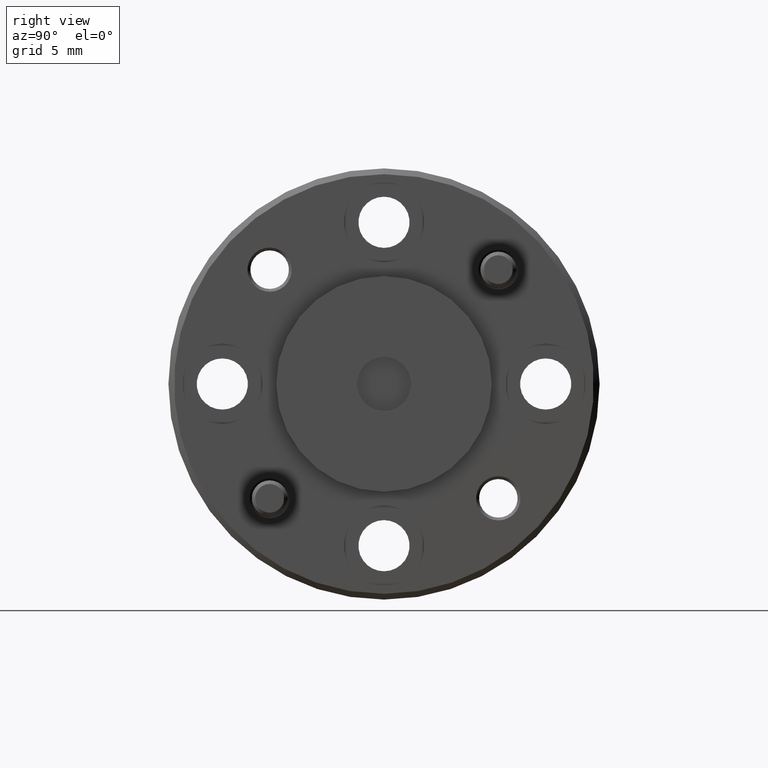
[diagram: clean part render]
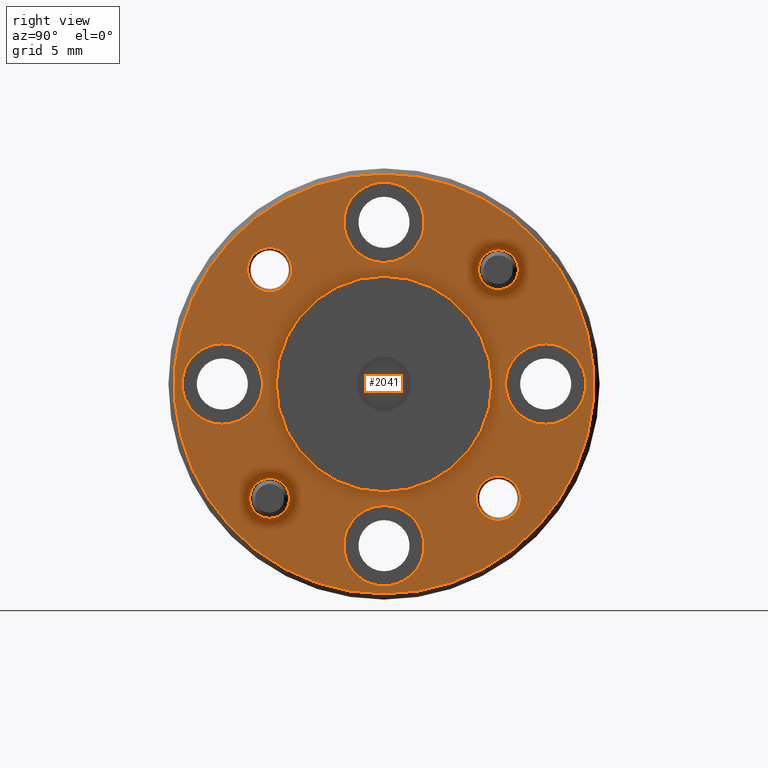
[diagram: same view with one face highlighted and labeled with its STEP entity id]
A machine part, right view. The second image highlights one B-rep face of the part: STEP entity #2041.
In plain terms, the highlighted planar face has unit normal (1, 0, -0).
Its self-contained STEP definition (entity closure, byte-faithful):
#2 = VERTEX_POINT ( 'NONE', #1947 ) ;
#29 = DIRECTION ( 'NONE',  ( 0.0000000000000000000, 0.0000000000000000000, -1.000000000000000000 ) ) ;
#30 = CARTESIAN_POINT ( 'NONE',  ( 0.3505151396269433600, 0.4701054730334653400, 0.1041474666369298500 ) ) ;
#40 = DIRECTION ( 'NONE',  ( 1.000000000000000000, 0.0000000000000000000, 0.0000000000000000000 ) ) ;
#57 = AXIS2_PLACEMENT_3D ( 'NONE', #1009, #40, #695 ) ;
#65 = FACE_BOUND ( 'NONE', #791, .T. ) ;
#67 = AXIS2_PLACEMENT_3D ( 'NONE', #783, #1243, #921 ) ;
#97 = ORIENTED_EDGE ( 'NONE', *, *, #891, .F. ) ;
#113 = EDGE_LOOP ( 'NONE', ( #856, #471 ) ) ;
#129 = CARTESIAN_POINT ( 'NONE',  ( 0.3505151396269433600, 0.1888554730334652300, 0.4691474666369300800 ) ) ;
#131 = EDGE_CURVE ( 'NONE', #2015, #784, #1611, .T. ) ;
#162 = EDGE_CURVE ( 'NONE', #1688, #345, #546, .T. ) ;
#191 = EDGE_LOOP ( 'NONE', ( #1325, #1597 ) ) ;
#193 = VERTEX_POINT ( 'NONE', #527 ) ;
#214 = DIRECTION ( 'NONE',  ( 0.0000000000000000000, 0.0000000000000000000, -1.000000000000000000 ) ) ;
#216 = VERTEX_POINT ( 'NONE', #860 ) ;
#218 = DIRECTION ( 'NONE',  ( 1.000000000000000000, -0.0000000000000000000, -0.0000000000000000000 ) ) ;
#223 = CARTESIAN_POINT ( 'NONE',  ( 0.3505151396269433600, 0.2712316908247487900, 0.2702736844282135300 ) ) ;
#224 = CIRCLE ( 'NONE', #1627, 0.1874999999999999700 ) ;
#226 = AXIS2_PLACEMENT_3D ( 'NONE', #1375, #1214, #1509 ) ;
#236 = VERTEX_POINT ( 'NONE', #1835 ) ;
#243 = CARTESIAN_POINT ( 'NONE',  ( 0.3505151396269433600, 0.7513554730334652800, 0.4691474666369300800 ) ) ;
#244 = DIRECTION ( 'NONE',  ( 0.0000000000000000000, 0.0000000000000000000, -1.000000000000000000 ) ) ;
#258 = DIRECTION ( 'NONE',  ( 1.000000000000000000, 0.0000000000000000000, 0.0000000000000000000 ) ) ;
#268 = ORIENTED_EDGE ( 'NONE', *, *, #131, .F. ) ;
#277 = CARTESIAN_POINT ( 'NONE',  ( 0.3505151396269433600, 0.4701054730334652800, 0.8341474666369302900 ) ) ;
#294 = CARTESIAN_POINT ( 'NONE',  ( 0.3505151396269433600, 0.4701054730334652800, 0.4691474666369300800 ) ) ;
#299 = DIRECTION ( 'NONE',  ( 1.000000000000000000, 0.0000000000000000000, 0.0000000000000000000 ) ) ;
#345 = VERTEX_POINT ( 'NONE', #2000 ) ;
#349 = AXIS2_PLACEMENT_3D ( 'NONE', #129, #1103, #1910 ) ;
#358 = EDGE_CURVE ( 'NONE', #414, #1220, #476, .T. ) ;
#367 = DIRECTION ( 'NONE',  ( 0.0000000000000000000, 0.0000000000000000000, -1.000000000000000000 ) ) ;
#374 = DIRECTION ( 'NONE',  ( 0.0000000000000000000, 0.0000000000000000000, -1.000000000000000000 ) ) ;
#378 = CIRCLE ( 'NONE', #1636, 0.03850000000000001300 ) ;
#388 = ORIENTED_EDGE ( 'NONE', *, *, #998, .F. ) ;
#402 = AXIS2_PLACEMENT_3D ( 'NONE', #1971, #218, #1350 ) ;
#414 = VERTEX_POINT ( 'NONE', #2043 ) ;
#418 = AXIS2_PLACEMENT_3D ( 'NONE', #223, #718, #857 ) ;
#457 = ORIENTED_EDGE ( 'NONE', *, *, #1838, .T. ) ;
#471 = ORIENTED_EDGE ( 'NONE', *, *, #698, .F. ) ;
#474 = FACE_BOUND ( 'NONE', #1330, .T. ) ;
#475 = CARTESIAN_POINT ( 'NONE',  ( 0.3505151396269433600, 0.2712316908247487900, 0.6680212488456465100 ) ) ;
#476 = CIRCLE ( 'NONE', #349, 0.07000000000000000700 ) ;
#484 = VERTEX_POINT ( 'NONE', #30 ) ;
#488 = DIRECTION ( 'NONE',  ( 1.000000000000000000, -0.0000000000000000000, -0.0000000000000000000 ) ) ;
#490 = AXIS2_PLACEMENT_3D ( 'NONE', #871, #520, #214 ) ;
#494 = DIRECTION ( 'NONE',  ( 0.0000000000000000000, 0.0000000000000000000, -1.000000000000000000 ) ) ;
#496 = FACE_BOUND ( 'NONE', #191, .T. ) ;
#508 = ORIENTED_EDGE ( 'NONE', *, *, #1152, .F. ) ;
#518 = CIRCLE ( 'NONE', #913, 0.06999999999999999300 ) ;
#520 = DIRECTION ( 'NONE',  ( 1.000000000000000000, -0.0000000000000000000, -0.0000000000000000000 ) ) ;
#527 = CARTESIAN_POINT ( 'NONE',  ( 0.3505151396269433600, 0.2712316908247487900, 0.3050236844282135400 ) ) ;
#532 = ORIENTED_EDGE ( 'NONE', *, *, #1404, .T. ) ;
#546 = CIRCLE ( 'NONE', #490, 0.03850000000000001300 ) ;
#562 = EDGE_CURVE ( 'NONE', #1523, #1619, #1787, .T. ) ;
#566 = CARTESIAN_POINT ( 'NONE',  ( 0.3505151396269433600, 0.4701054730334652800, 0.4691474666369300800 ) ) ;
#586 = AXIS2_PLACEMENT_3D ( 'NONE', #1802, #1507, #367 ) ;
#591 = DIRECTION ( 'NONE',  ( 0.0000000000000000000, 0.0000000000000000000, -1.000000000000000000 ) ) ;
#599 = EDGE_CURVE ( 'NONE', #1276, #216, #378, .T. ) ;
#605 = ORIENTED_EDGE ( 'NONE', *, *, #562, .F. ) ;
#610 = CARTESIAN_POINT ( 'NONE',  ( 0.3505151396269433600, 0.7513554730334652800, 0.3991474666369300700 ) ) ;
#627 = DIRECTION ( 'NONE',  ( -0.0000000000000000000, 0.0000000000000000000, -1.000000000000000000 ) ) ;
#646 = CIRCLE ( 'NONE', #1729, 0.06999999999999993700 ) ;
#659 = ORIENTED_EDGE ( 'NONE', *, *, #1047, .F. ) ;
#667 = CARTESIAN_POINT ( 'NONE',  ( 0.3505151396269433600, 0.6689792552421817100, 0.2317736844282135300 ) ) ;
#678 = CIRCLE ( 'NONE', #402, 0.3650000000000002100 ) ;
#693 = CARTESIAN_POINT ( 'NONE',  ( 0.3505151396269433600, 0.7513554730334652800, 0.4691474666369300800 ) ) ;
#695 = DIRECTION ( 'NONE',  ( 0.0000000000000000000, 0.0000000000000000000, -1.000000000000000000 ) ) ;
#696 = DIRECTION ( 'NONE',  ( 1.000000000000000000, -0.0000000000000000000, -0.0000000000000000000 ) ) ;
#698 = EDGE_CURVE ( 'NONE', #193, #1504, #1730, .T. ) ;
#717 = ORIENTED_EDGE ( 'NONE', *, *, #720, .F. ) ;
#718 = DIRECTION ( 'NONE',  ( 1.000000000000000000, -0.0000000000000000000, -0.0000000000000000000 ) ) ;
#720 = EDGE_CURVE ( 'NONE', #887, #1746, #1702, .T. ) ;
#749 = CIRCLE ( 'NONE', #868, 0.06999999999999999300 ) ;
#770 = CARTESIAN_POINT ( 'NONE',  ( 0.3505151396269433600, 0.2712316908247487900, 0.2702736844282135300 ) ) ;
#783 = CARTESIAN_POINT ( 'NONE',  ( 0.3505151396269433600, 0.1888554730334652300, 0.4691474666369300800 ) ) ;
#784 = VERTEX_POINT ( 'NONE', #1055 ) ;
#789 = CARTESIAN_POINT ( 'NONE',  ( 0.3505151396269433600, 0.6576054730334651700, 0.4691474666369300800 ) ) ;
#791 = EDGE_LOOP ( 'NONE', ( #268, #1351 ) ) ;
#800 = CARTESIAN_POINT ( 'NONE',  ( 0.3505151396269433600, 0.4701054730334652800, 0.1878974666369300200 ) ) ;
#808 = CARTESIAN_POINT ( 'NONE',  ( 0.3505151396269433600, 0.6689792552421817100, 0.6680212488456465100 ) ) ;
#812 = CARTESIAN_POINT ( 'NONE',  ( 0.3505151396269433600, 0.6689792552421817100, 0.6680212488456465100 ) ) ;
#821 = AXIS2_PLACEMENT_3D ( 'NONE', #693, #1336, #1363 ) ;
#830 = CIRCLE ( 'NONE', #821, 0.07000000000000000700 ) ;
#856 = ORIENTED_EDGE ( 'NONE', *, *, #1111, .F. ) ;
#857 = DIRECTION ( 'NONE',  ( 0.0000000000000000000, 0.0000000000000000000, -1.000000000000000000 ) ) ;
#860 = CARTESIAN_POINT ( 'NONE',  ( 0.3505151396269433600, 0.6689792552421817100, 0.3087736844282135700 ) ) ;
#861 = CARTESIAN_POINT ( 'NONE',  ( 0.3505151396269433600, 0.4701054730334652800, 0.2578974666369300300 ) ) ;
#868 = AXIS2_PLACEMENT_3D ( 'NONE', #1900, #299, #2049 ) ;
#871 = CARTESIAN_POINT ( 'NONE',  ( 0.3505151396269433600, 0.2712316908247487900, 0.6680212488456465100 ) ) ;
#878 = CARTESIAN_POINT ( 'NONE',  ( 0.3505151396269433600, 0.6689792552421817100, 0.2702736844282135300 ) ) ;
#887 = VERTEX_POINT ( 'NONE', #1771 ) ;
#891 = EDGE_CURVE ( 'NONE', #1619, #1523, #1003, .T. ) ;
#896 = EDGE_CURVE ( 'NONE', #2, #1483, #518, .T. ) ;
#913 = AXIS2_PLACEMENT_3D ( 'NONE', #800, #964, #494 ) ;
#921 = DIRECTION ( 'NONE',  ( 0.0000000000000000000, 0.0000000000000000000, -1.000000000000000000 ) ) ;
#953 = CIRCLE ( 'NONE', #1843, 0.03475000000000001700 ) ;
#954 = AXIS2_PLACEMENT_3D ( 'NONE', #808, #488, #1613 ) ;
#958 = CIRCLE ( 'NONE', #586, 0.03850000000000001300 ) ;
#961 = EDGE_CURVE ( 'NONE', #1746, #887, #224, .T. ) ;
#964 = DIRECTION ( 'NONE',  ( 1.000000000000000000, 0.0000000000000000000, 0.0000000000000000000 ) ) ;
#965 = DIRECTION ( 'NONE',  ( 1.000000000000000000, -0.0000000000000000000, -0.0000000000000000000 ) ) ;
#971 = CARTESIAN_POINT ( 'NONE',  ( 0.3505151396269433600, 0.4701054730334652800, 0.6803974666369302400 ) ) ;
#998 = EDGE_CURVE ( 'NONE', #1182, #236, #646, .T. ) ;
#1003 = CIRCLE ( 'NONE', #1312, 0.03474999999999994800 ) ;
#1009 = CARTESIAN_POINT ( 'NONE',  ( 0.3505151396269433600, 0.4701054730334652800, 0.7503974666369301900 ) ) ;
#1016 = EDGE_LOOP ( 'NONE', ( #1199, #1717 ) ) ;
#1029 = FACE_BOUND ( 'NONE', #1989, .T. ) ;
#1037 = CARTESIAN_POINT ( 'NONE',  ( 0.3505151396269433600, 0.2712316908247487900, 0.7065212488456466000 ) ) ;
#1041 = DIRECTION ( 'NONE',  ( 0.0000000000000000000, 0.0000000000000000000, -1.000000000000000000 ) ) ;
#1047 = EDGE_CURVE ( 'NONE', #1220, #414, #1881, .T. ) ;
#1055 = CARTESIAN_POINT ( 'NONE',  ( 0.3505151396269433600, 0.7513554730334652800, 0.5391474666369300300 ) ) ;
#1062 = CARTESIAN_POINT ( 'NONE',  ( 0.3505151396269433600, 0.4701054730334652800, 0.2816474666369300800 ) ) ;
#1077 = DIRECTION ( 'NONE',  ( 1.000000000000000000, -0.0000000000000000000, -0.0000000000000000000 ) ) ;
#1101 = AXIS2_PLACEMENT_3D ( 'NONE', #243, #1345, #374 ) ;
#1102 = DIRECTION ( 'NONE',  ( 1.000000000000000000, 0.0000000000000000000, -0.0000000000000000000 ) ) ;
#1103 = DIRECTION ( 'NONE',  ( 1.000000000000000000, 0.0000000000000000000, 0.0000000000000000000 ) ) ;
#1111 = EDGE_CURVE ( 'NONE', #1504, #193, #953, .T. ) ;
#1124 = EDGE_CURVE ( 'NONE', #1483, #2, #749, .T. ) ;
#1133 = FACE_BOUND ( 'NONE', #1302, .T. ) ;
#1142 = CARTESIAN_POINT ( 'NONE',  ( 0.3505151396269433600, 0.1888554730334652300, 0.3991474666369300700 ) ) ;
#1143 = EDGE_LOOP ( 'NONE', ( #388, #1898 ) ) ;
#1152 = EDGE_CURVE ( 'NONE', #345, #1688, #1674, .T. ) ;
#1182 = VERTEX_POINT ( 'NONE', #971 ) ;
#1199 = ORIENTED_EDGE ( 'NONE', *, *, #599, .F. ) ;
#1204 = AXIS2_PLACEMENT_3D ( 'NONE', #475, #1765, #1608 ) ;
#1214 = DIRECTION ( 'NONE',  ( 1.000000000000000000, -0.0000000000000000000, -0.0000000000000000000 ) ) ;
#1220 = VERTEX_POINT ( 'NONE', #1142 ) ;
#1221 = EDGE_LOOP ( 'NONE', ( #97, #605 ) ) ;
#1237 = FACE_OUTER_BOUND ( 'NONE', #1574, .T. ) ;
#1243 = DIRECTION ( 'NONE',  ( 1.000000000000000000, 0.0000000000000000000, 0.0000000000000000000 ) ) ;
#1276 = VERTEX_POINT ( 'NONE', #667 ) ;
#1293 = EDGE_CURVE ( 'NONE', #216, #1276, #958, .T. ) ;
#1302 = EDGE_LOOP ( 'NONE', ( #1824, #717 ) ) ;
#1312 = AXIS2_PLACEMENT_3D ( 'NONE', #812, #965, #29 ) ;
#1325 = ORIENTED_EDGE ( 'NONE', *, *, #896, .F. ) ;
#1330 = EDGE_LOOP ( 'NONE', ( #659, #1874 ) ) ;
#1336 = DIRECTION ( 'NONE',  ( 1.000000000000000000, 0.0000000000000000000, 0.0000000000000000000 ) ) ;
#1345 = DIRECTION ( 'NONE',  ( 1.000000000000000000, 0.0000000000000000000, 0.0000000000000000000 ) ) ;
#1350 = DIRECTION ( 'NONE',  ( 0.0000000000000000000, 0.0000000000000000000, -1.000000000000000000 ) ) ;
#1351 = ORIENTED_EDGE ( 'NONE', *, *, #1417, .F. ) ;
#1353 = ORIENTED_EDGE ( 'NONE', *, *, #162, .F. ) ;
#1363 = DIRECTION ( 'NONE',  ( 0.0000000000000000000, 0.0000000000000000000, -1.000000000000000000 ) ) ;
#1370 = CIRCLE ( 'NONE', #1484, 0.3650000000000002100 ) ;
#1375 = CARTESIAN_POINT ( 'NONE',  ( 0.3505151396269433600, 0.4701054730334652800, 0.4691474666369300800 ) ) ;
#1378 = EDGE_CURVE ( 'NONE', #236, #1182, #1680, .T. ) ;
#1392 = DIRECTION ( 'NONE',  ( 0.0000000000000000000, 0.0000000000000000000, -1.000000000000000000 ) ) ;
#1404 = EDGE_CURVE ( 'NONE', #1925, #484, #678, .T. ) ;
#1417 = EDGE_CURVE ( 'NONE', #784, #2015, #830, .T. ) ;
#1419 = DIRECTION ( 'NONE',  ( 0.0000000000000000000, 0.0000000000000000000, -1.000000000000000000 ) ) ;
#1452 = FACE_BOUND ( 'NONE', #1143, .T. ) ;
#1483 = VERTEX_POINT ( 'NONE', #861 ) ;
#1484 = AXIS2_PLACEMENT_3D ( 'NONE', #294, #1718, #591 ) ;
#1501 = CARTESIAN_POINT ( 'NONE',  ( 0.3505151396269433600, 0.2712316908247487900, 0.2355236844282135000 ) ) ;
#1504 = VERTEX_POINT ( 'NONE', #1501 ) ;
#1507 = DIRECTION ( 'NONE',  ( 1.000000000000000000, -0.0000000000000000000, -0.0000000000000000000 ) ) ;
#1509 = DIRECTION ( 'NONE',  ( 0.0000000000000000000, 0.0000000000000000000, -1.000000000000000000 ) ) ;
#1516 = FACE_BOUND ( 'NONE', #113, .T. ) ;
#1523 = VERTEX_POINT ( 'NONE', #1996 ) ;
#1533 = CARTESIAN_POINT ( 'NONE',  ( 0.3505151396269433600, 0.4701054730334652800, 0.7503974666369301900 ) ) ;
#1558 = FACE_BOUND ( 'NONE', #1221, .T. ) ;
#1574 = EDGE_LOOP ( 'NONE', ( #532, #457 ) ) ;
#1597 = ORIENTED_EDGE ( 'NONE', *, *, #1124, .F. ) ;
#1608 = DIRECTION ( 'NONE',  ( 0.0000000000000000000, 0.0000000000000000000, -1.000000000000000000 ) ) ;
#1611 = CIRCLE ( 'NONE', #1101, 0.07000000000000000700 ) ;
#1613 = DIRECTION ( 'NONE',  ( 0.0000000000000000000, 0.0000000000000000000, -1.000000000000000000 ) ) ;
#1619 = VERTEX_POINT ( 'NONE', #1966 ) ;
#1627 = AXIS2_PLACEMENT_3D ( 'NONE', #566, #2037, #244 ) ;
#1636 = AXIS2_PLACEMENT_3D ( 'NONE', #878, #696, #1041 ) ;
#1674 = CIRCLE ( 'NONE', #1204, 0.03850000000000001300 ) ;
#1680 = CIRCLE ( 'NONE', #57, 0.06999999999999993700 ) ;
#1688 = VERTEX_POINT ( 'NONE', #1037 ) ;
#1699 = AXIS2_PLACEMENT_3D ( 'NONE', #789, #1102, #627 ) ;
#1702 = CIRCLE ( 'NONE', #226, 0.1874999999999999700 ) ;
#1717 = ORIENTED_EDGE ( 'NONE', *, *, #1293, .F. ) ;
#1718 = DIRECTION ( 'NONE',  ( 1.000000000000000000, -0.0000000000000000000, -0.0000000000000000000 ) ) ;
#1729 = AXIS2_PLACEMENT_3D ( 'NONE', #1533, #258, #1392 ) ;
#1730 = CIRCLE ( 'NONE', #418, 0.03475000000000001700 ) ;
#1746 = VERTEX_POINT ( 'NONE', #1062 ) ;
#1749 = PLANE ( 'NONE',  #1699 ) ;
#1765 = DIRECTION ( 'NONE',  ( 1.000000000000000000, -0.0000000000000000000, -0.0000000000000000000 ) ) ;
#1771 = CARTESIAN_POINT ( 'NONE',  ( 0.3505151396269433600, 0.4701054730334652800, 0.6566474666369300800 ) ) ;
#1787 = CIRCLE ( 'NONE', #954, 0.03474999999999994800 ) ;
#1802 = CARTESIAN_POINT ( 'NONE',  ( 0.3505151396269433600, 0.6689792552421817100, 0.2702736844282135300 ) ) ;
#1824 = ORIENTED_EDGE ( 'NONE', *, *, #961, .F. ) ;
#1835 = CARTESIAN_POINT ( 'NONE',  ( 0.3505151396269433600, 0.4701054730334652800, 0.8203974666369301400 ) ) ;
#1838 = EDGE_CURVE ( 'NONE', #484, #1925, #1370, .T. ) ;
#1843 = AXIS2_PLACEMENT_3D ( 'NONE', #770, #1077, #1419 ) ;
#1863 = FACE_BOUND ( 'NONE', #1016, .T. ) ;
#1874 = ORIENTED_EDGE ( 'NONE', *, *, #358, .F. ) ;
#1881 = CIRCLE ( 'NONE', #67, 0.07000000000000000700 ) ;
#1898 = ORIENTED_EDGE ( 'NONE', *, *, #1378, .F. ) ;
#1900 = CARTESIAN_POINT ( 'NONE',  ( 0.3505151396269433600, 0.4701054730334652800, 0.1878974666369300200 ) ) ;
#1910 = DIRECTION ( 'NONE',  ( 0.0000000000000000000, 0.0000000000000000000, -1.000000000000000000 ) ) ;
#1925 = VERTEX_POINT ( 'NONE', #277 ) ;
#1947 = CARTESIAN_POINT ( 'NONE',  ( 0.3505151396269433600, 0.4701054730334652800, 0.1178974666369300300 ) ) ;
#1966 = CARTESIAN_POINT ( 'NONE',  ( 0.3505151396269433600, 0.6689792552421817100, 0.6332712488456465600 ) ) ;
#1971 = CARTESIAN_POINT ( 'NONE',  ( 0.3505151396269433600, 0.4701054730334652800, 0.4691474666369300800 ) ) ;
#1989 = EDGE_LOOP ( 'NONE', ( #508, #1353 ) ) ;
#1996 = CARTESIAN_POINT ( 'NONE',  ( 0.3505151396269433600, 0.6689792552421817100, 0.7027712488456464600 ) ) ;
#2000 = CARTESIAN_POINT ( 'NONE',  ( 0.3505151396269433600, 0.2712316908247487900, 0.6295212488456465300 ) ) ;
#2015 = VERTEX_POINT ( 'NONE', #610 ) ;
#2037 = DIRECTION ( 'NONE',  ( 1.000000000000000000, -0.0000000000000000000, -0.0000000000000000000 ) ) ;
#2041 = ADVANCED_FACE ( 'NONE', ( #1452, #474, #496, #65, #1516, #1558, #1863, #1029, #1237, #1133 ), #1749, .T. ) ;
#2043 = CARTESIAN_POINT ( 'NONE',  ( 0.3505151396269433600, 0.1888554730334652300, 0.5391474666369300300 ) ) ;
#2049 = DIRECTION ( 'NONE',  ( 0.0000000000000000000, 0.0000000000000000000, -1.000000000000000000 ) ) ;